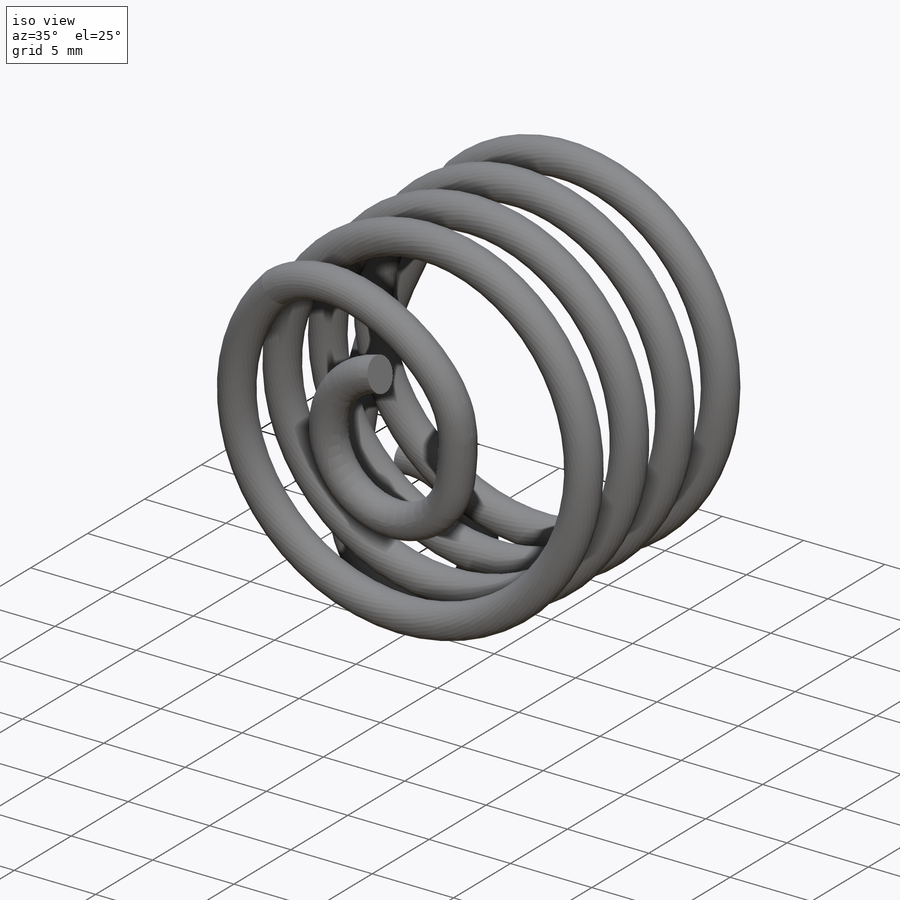
[diagram: iso view]
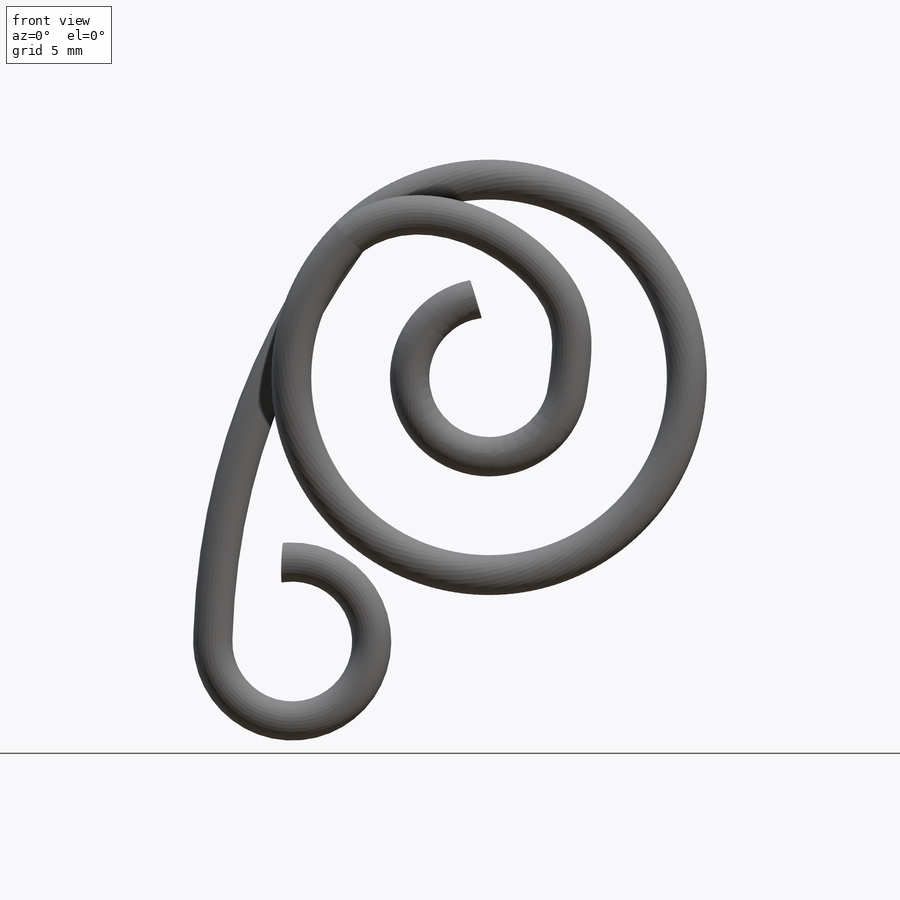
[diagram: front view]
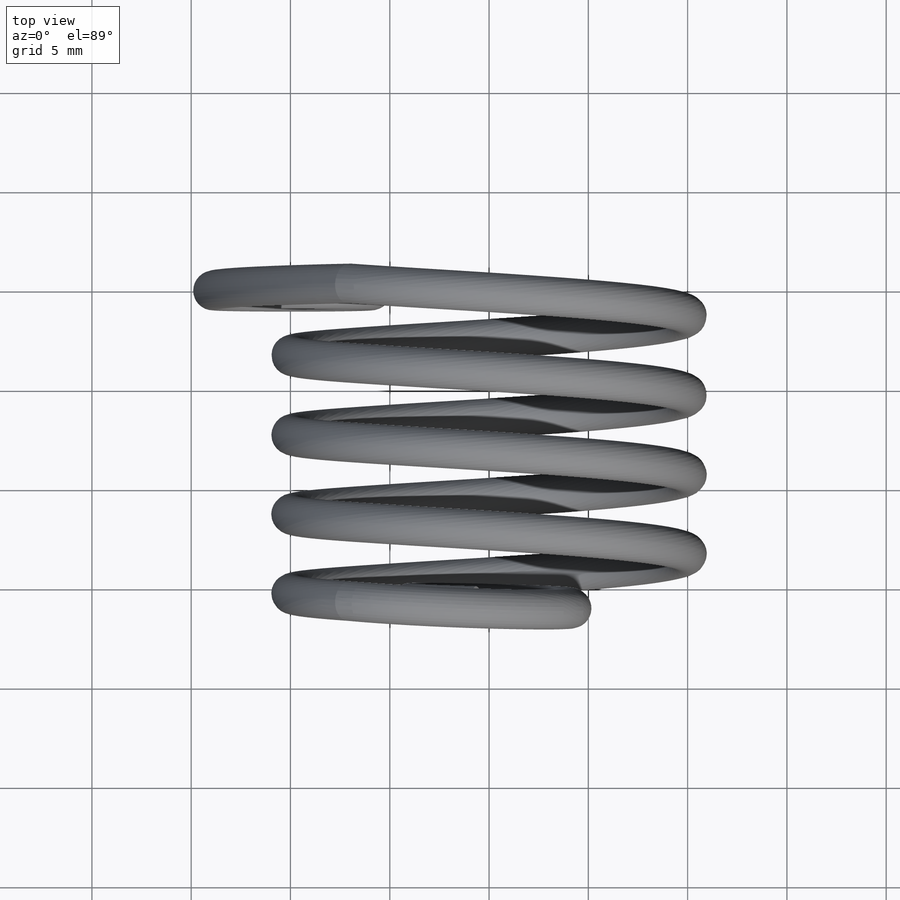
[diagram: top view]
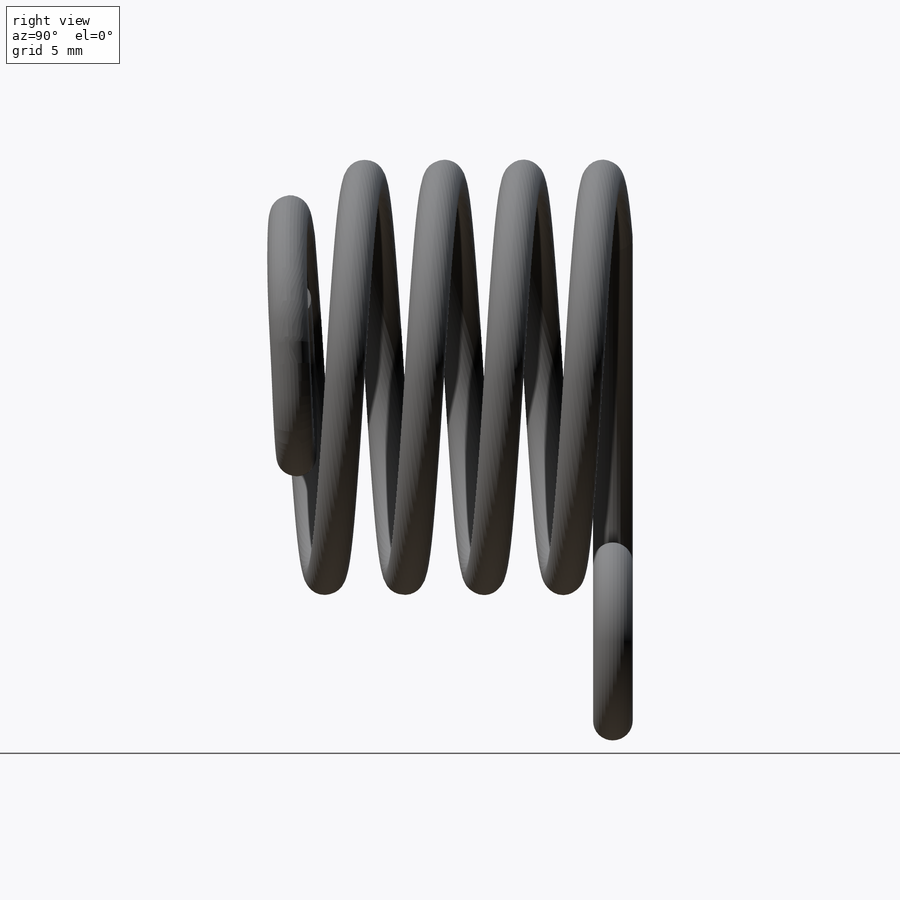
[diagram: right view]
SOLIDWORKS PART (.sldprt)
format: sldprt  version: not decoded by parser v0  size: 589,312 bytes
history: native  units: mm
features: sketch x6, plane x4, sweep x3, material x1, helix x1 (+10 scaffold rows collapsed)
feature tree (25):
  scaffold x10  (default folders/planes/origin — collapsed)
  material  "材质 <未指定>"
  plane  "前视基准面"
  plane  "上视基准面"
  plane  "右视基准面"
  sketch  "草图3"  dims[D1=~3.665154mm]
  helix  "螺旋线/涡状线1"  Pitch=16mm
  plane  "基准面2"
  sketch  "草图6"  dims[D1=~0.911982mm]
  sweep  "扫描3"
  sketch  "3D草图2"  dims[D1=~4.517577mm]
  sketch  "草图7"  dims[D1=~0.693995mm]
  sweep  "扫描4"
  sketch  "草图8"  dims[D1=~0.606804mm]
  sweep  "扫描5"
  sketch  "基准轴2"
decode coverage: 6 of 10 modeling features carry decoded parameters
note: ~ marks probable driven/reference dimensions
note: suppression state not decoded; provenance and decode notes live in map.json
